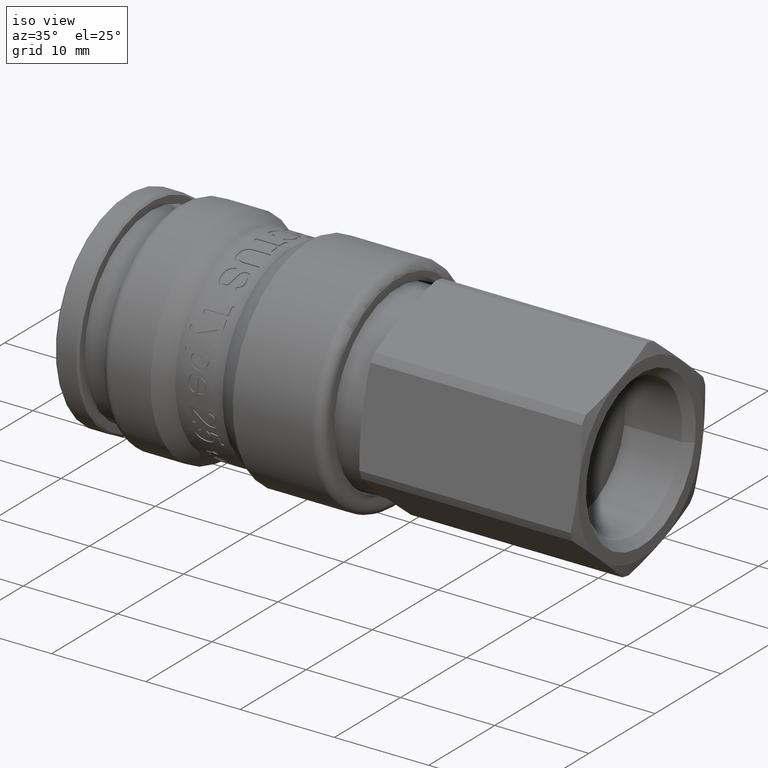
[diagram: clean part render]
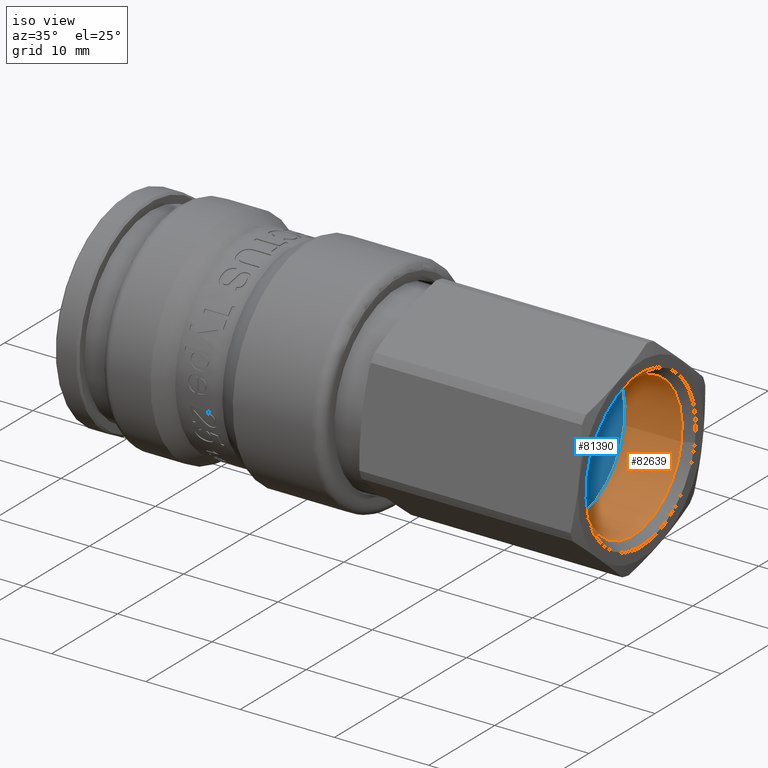
[diagram: same view with the hole feature highlighted: cylindrical wall and planar end face, labeled with their STEP entity ids]
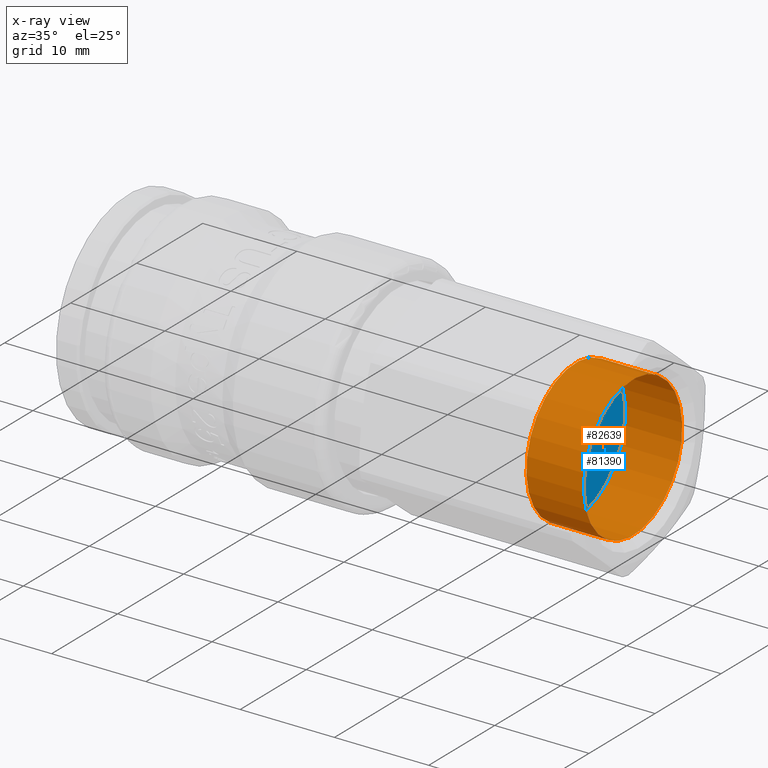
[diagram: x-ray of the same camera — body ghosted, the hole faces saturated]
A machine part, iso view. The highlighted faces form one hole feature of diameter 14.95 mm: the cylindrical wall (entity #82639, orange) and its adjacent planar end face (entity #81390, blue) — they share a circular edge in the B-rep.
The next image is the same camera in x-ray (body ghosted, the hole faces saturated) — the bore reads through the body.
Wall:
#81379=CARTESIAN_POINT('',(47.586859587483289,-7.359842046826413,1.307038655038948));
#81380=VERTEX_POINT('',#81379);
#81381=CARTESIAN_POINT('',(47.586859587483289,1.480347E-016,-3.408441E-031));
#81382=DIRECTION('',(-1.0,2.075882E-017,-3.686571E-018));
#81383=DIRECTION('',(2.108363E-017,0.984594253756042,-0.174854669570428));
#81384=AXIS2_PLACEMENT_3D('',#81381,#81382,#81383);
#81385=CIRCLE('',#81384,7.475000000000001);
#81386=EDGE_CURVE('',#81380,#81380,#81385,.T.);
#82620=CARTESIAN_POINT('',(49.999999999999993,9.636085E-017,-2.218671E-031));
#82621=DIRECTION('',(-1.0,2.141352E-017,-4.930381E-032));
#82622=DIRECTION('',(2.108363E-017,0.984594253756042,-0.174854669570428));
#82623=AXIS2_PLACEMENT_3D('',#82620,#82621,#82622);
#82624=CYLINDRICAL_SURFACE('',#82623,7.475000000000001);
#82625=ORIENTED_EDGE('',*,*,#81386,.T.);
#82626=EDGE_LOOP('',(#82625));
#82627=FACE_OUTER_BOUND('',#82626,.T.);
#82628=CARTESIAN_POINT('',(53.650000000000006,7.359842046826413,-1.307038655038948));
#82629=VERTEX_POINT('',#82628);
#82630=CARTESIAN_POINT('',(53.650000000000006,1.820149E-017,-4.190824E-032));
#82631=DIRECTION('',(-1.0,2.075882E-017,-3.686571E-018));
#82632=DIRECTION('',(-2.108363E-017,-0.984594253756042,0.174854669570428));
#82633=AXIS2_PLACEMENT_3D('',#82630,#82631,#82632);
#82634=CIRCLE('',#82633,7.475000000000001);
#82635=EDGE_CURVE('',#82629,#82629,#82634,.T.);
#82636=ORIENTED_EDGE('',*,*,#82635,.F.);
#82637=EDGE_LOOP('',(#82636));
#82638=FACE_BOUND('',#82637,.T.);
#82639=ADVANCED_FACE('',(#82627,#82638),#82624,.F.);
End face:
#81374=CARTESIAN_POINT('',(47.586859587483289,3.980446221307652,0.0));
#81375=DIRECTION('',(1.0,0.0,0.0));
#81376=DIRECTION('',(0.0,0.0,-1.0));
#81377=AXIS2_PLACEMENT_3D('',#81374,#81375,#81376);
#81378=PLANE('',#81377);
#81379=CARTESIAN_POINT('',(47.586859587483289,-7.359842046826413,1.307038655038948));
#81380=VERTEX_POINT('',#81379);
#81381=CARTESIAN_POINT('',(47.586859587483289,1.480347E-016,-3.408441E-031));
#81382=DIRECTION('',(-1.0,2.075882E-017,-3.686571E-018));
#81383=DIRECTION('',(2.108363E-017,0.984594253756042,-0.174854669570428));
#81384=AXIS2_PLACEMENT_3D('',#81381,#81382,#81383);
#81385=CIRCLE('',#81384,7.475000000000001);
#81386=EDGE_CURVE('',#81380,#81380,#81385,.T.);
#81387=ORIENTED_EDGE('',*,*,#81386,.F.);
#81388=EDGE_LOOP('',(#81387));
#81389=FACE_OUTER_BOUND('',#81388,.T.);
#81390=ADVANCED_FACE('',(#81389),#81378,.T.);